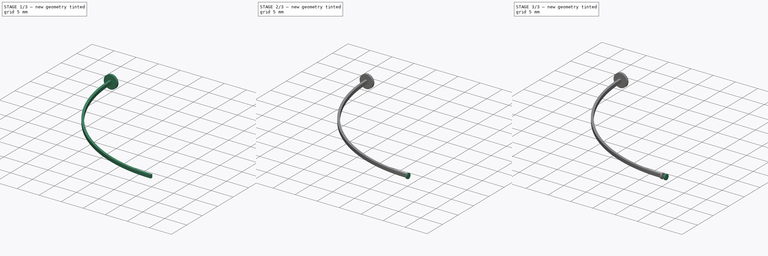
[diagram: build sequence overview — one tinted view per stage of 3, left to right]
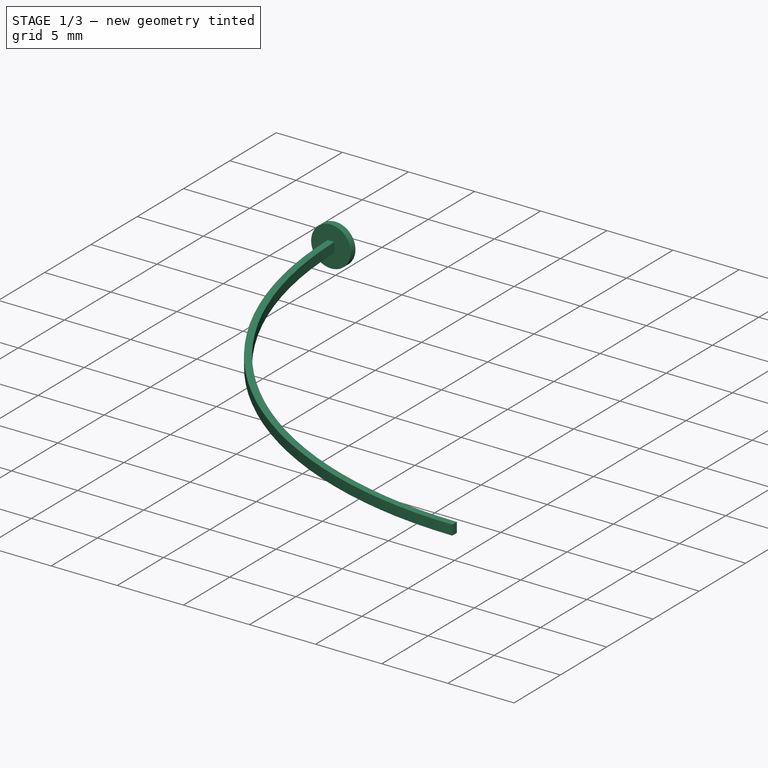
[diagram: stage 1 of 3 — iso view after this stage's code; geometry added in this stage tinted green]
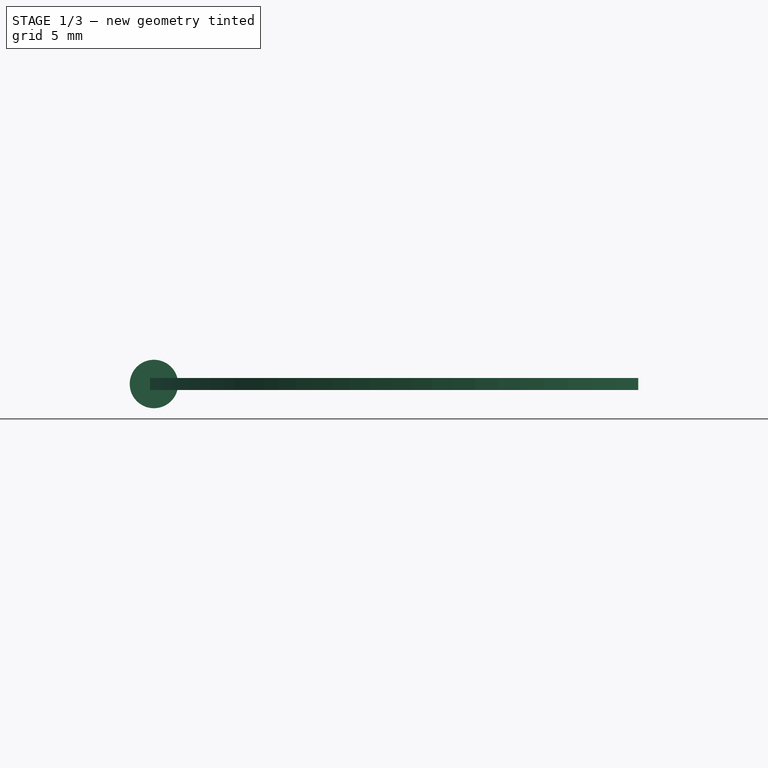
[diagram: stage 1 of 3 — front view after this stage's code; geometry added in this stage tinted green]
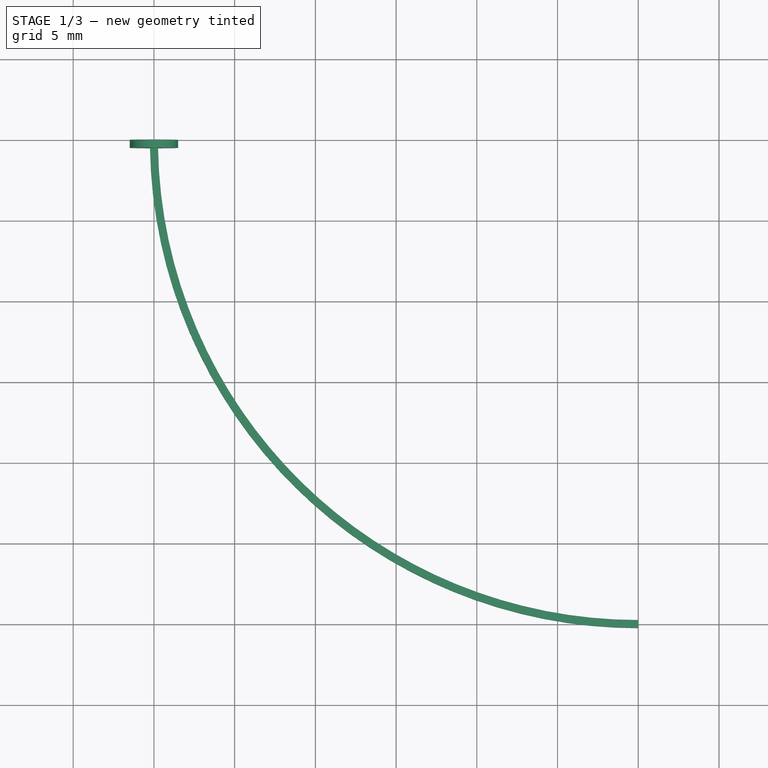
[diagram: stage 1 of 3 — top view after this stage's code; geometry added in this stage tinted green]
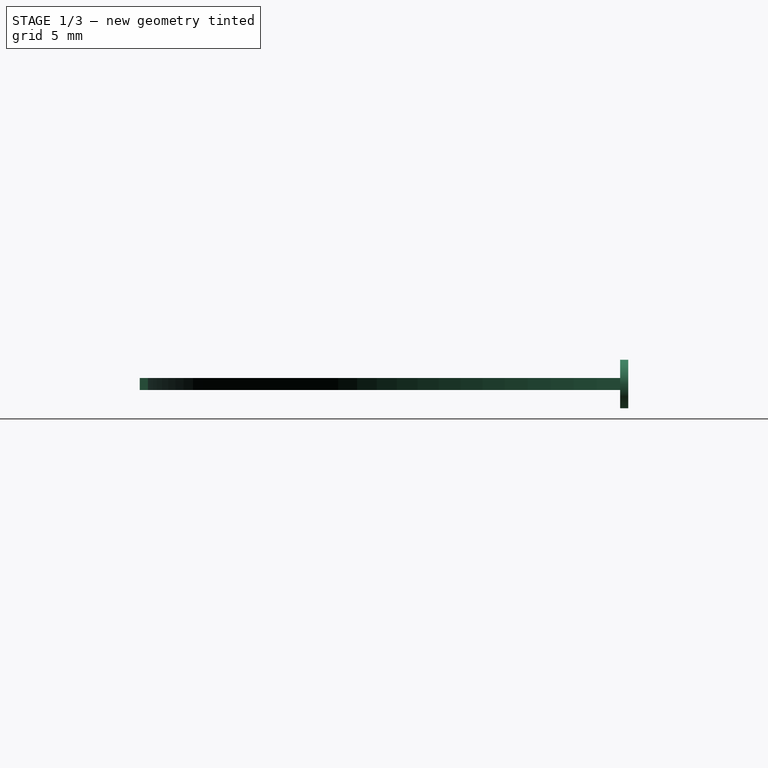
[diagram: stage 1 of 3 — right view after this stage's code; geometry added in this stage tinted green]
FCSTD DOCUMENT  (FreeCAD 0.20R29177 (Git))
Label: sla
License: All rights reserved
LicenseURL: http://en.wikipedia.org/wiki/All_rights_reserved
objects: Sketcher::SketchObject×5, PartDesign::Pad×5, PartDesign::Plane×3, Spreadsheet::Sheet×1, PartDesign::Body×1
note: 19 computed .brp shape members not serialized (recipe doc carries the construction recipe); baked Part::Feature solids carry a one-line shape summary decoded from their .brp

FEATURE [Spreadsheet::Sheet] Spreadsheet
  cells = A2=Design Parameters; A3=RefLength; B3(RefLength)==1mm; A4=ArmArcRadius; B4(ArmArcRadius)==30 * RefLength; A5=ArmWidth; B5(ArmWidth)==0.5 * RefLength; A6=ArmHeight; B6(ArmHeight)==0.75 * RefLength; A7=InnerPlaneDatumPlaneOffsetX; B7(InnerPlaneDatumPlaneOffsetX)==ArmArcRadius; A8=InnerPlaneDatumPlaneOffsetY; B8(InnerPlaneDatumPlaneOffsetY)==-ArmArcRadius; A9=ArmBaseDiameter; B9(ArmBaseDiameter)==3 * RefLength; A10=ArmBasePadLength; B10(ArmBasePadLength)==0.5 * RefLength; A11=JointPlateDiameter; B11(JointPlateDiameter)==1.2 * RefLength; A12=JointPlateThickness; B12(JointPlateThickness)==0.3 * RefLength; A13=JointPinDiameter; B13(JointPinDiameter)==0.3 * RefLength; A14=JointPinLength; B14(JointPinLength)==0.5 * RefLength; A15=PinDatumPlaneOffsetX; B15(PinDatumPlaneOffsetX)==ArmArcRadius + JointPlateThickness; A16=PinDatumPlaneOffsetY; B16(PinDatumPlaneOffsetY)==-ArmArcRadius; A17=OuterPlateDatumPlaneOffsetX; B17(OuterPlateDatumPlaneOffsetX)==ArmArcRadius + JointPlateThickness + JointPinLength; A18=OuterPlateDatumPlaneOffsetY; B18(OuterPlateDatumPlaneOffsetY)==-ArmArcRadius
FEATURE [Sketcher::SketchObject] Sketch  label="ArmSketch"
  FullyConstrained = true
  MapMode = 5
  Support = -> [XY_Plane]
  expr: Constraints[22] = Spreadsheet.ArmWidth
  expr: Constraints[9] = Spreadsheet.ArmArcRadius
  sketch-geometry (13):
    g0: LineSegment StartX=0 StartY=0 StartZ=0 EndX=0 EndY=-30 EndZ=0
    g1: LineSegment StartX=0 StartY=-30 StartZ=0 EndX=30 EndY=-30 EndZ=0
    g2: LineSegment StartX=0 StartY=0 StartZ=0 EndX=30 EndY=0 EndZ=0
    g3: LineSegment StartX=30 StartY=0 StartZ=0 EndX=30 EndY=-30 EndZ=0
    g4: ArcOfCircle CenterX=30 CenterY=0 CenterZ=0 NormalX=0 NormalY=0 NormalZ=1 AngleXU=0 Radius=30 StartAngle=3.14159 EndAngle=4.71239
    g5: LineSegment StartX=-0.25 StartY=0 StartZ=0 EndX=0 EndY=0 EndZ=0
    g6: LineSegment StartX=0 StartY=0 StartZ=0 EndX=0.25 EndY=0 EndZ=0
    g7: ArcOfCircle CenterX=30 CenterY=0 CenterZ=0 NormalX=0 NormalY=0 NormalZ=1 AngleXU=0 Radius=30.25 StartAngle=3.14159 EndAngle=4.71239
    g8: ArcOfCircle CenterX=30 CenterY=0 CenterZ=0 NormalX=0 NormalY=0 NormalZ=1 AngleXU=0 Radius=29.75 StartAngle=3.14159 EndAngle=4.71239
    g9: LineSegment StartX=30 StartY=-30 StartZ=0 EndX=30 EndY=-30.25 EndZ=0
    g10: LineSegment StartX=30 StartY=-29.75 StartZ=0 EndX=30 EndY=-30 EndZ=0
    g11: LineSegment StartX=30 StartY=-29.75 StartZ=0 EndX=30 EndY=-30 EndZ=0
    g12: LineSegment StartX=30 StartY=-30 StartZ=0 EndX=30 EndY=-30.25 EndZ=0
  constraints (33):
    c: Vertical(g0)
    c: Coincident(g0,g1)
    c: Horizontal(g1)
    c: Horizontal(g2)
    c: Coincident(g2,g3)
    c: Vertical(g3)
    c: Coincident(g3,g1)
    c: Coincident(g4,g2)
    c: Coincident(g4,g1)
    c: Radius(g4) = 30
    c: Horizontal(g5)
    c: Coincident(g5,g6)
    c: Horizontal(g6)
    c: Equal(g5,g6)
    c: Coincident(g7,g2)
    c: Coincident(g8,g7)
    c: Vertical(g9)
    c: Coincident(g9,g1)
    c: Coincident(g9,g7)
    c: Vertical(g10)
    c: Coincident(g1,g10)
    c: Coincident(g10,g8)
    c: DistanceX(g5,g6) = 0.5
    c: Coincident(g2,g0)
    c: Coincident(g4,g0)
    c: Coincident(g0,g5)
    c: Coincident(g5,g-1)
    c: Coincident(g7,g5)
    c: Coincident(g8,g6)
    c: Coincident(g11,g8)
    c: Coincident(g11,g1)
    c: Coincident(g12,g11)
    c: Coincident(g12,g7)
FEATURE [PartDesign::Pad] Pad  label="ArmPad"
  Direction = (0,0,1)
  Length = 0.75
  Length2 = 10
  Midplane = true
  Profile = -> Sketch
  ReferenceAxis = -> Sketch [N_Axis]
  Type = 0
  expr: Length = Spreadsheet.ArmHeight
FEATURE [PartDesign::Plane] DatumPlane  label="InnerPlateDatumPlane"
  AttachmentOffset = pos=(-30,0,30) rot=(0,0,1;0rad)
  Length = 66.1451
  MapMode = 5
  Placement = pos=(30,-30,1.33e-14) rot=(0.57735,0.57735,0.57735;2.0944rad)
  ResizeMode = 0
  Support = -> [YZ_Plane]
  Width = 60.5451
  expr: .AttachmentOffset.Base.x = Spreadsheet.InnerPlaneDatumPlaneOffsetY
  expr: .AttachmentOffset.Base.z = Spreadsheet.InnerPlaneDatumPlaneOffsetX
FEATURE [Sketcher::SketchObject] Sketch002  label="ArmBaseSketch"
  FullyConstrained = true
  MapMode = 5
  Placement = pos=(0,0,0) rot=(1,0,0;1.5708rad)
  Support = -> [XZ_Plane]
  expr: Constraints[1] = Spreadsheet.ArmBaseDiameter
  sketch-geometry (1):
    g0: Circle CenterX=0 CenterY=0 CenterZ=0 NormalX=0 NormalY=0 NormalZ=1 AngleXU=0 Radius=1.5
  constraints (2):
    c: Coincident(g0,g-1)
    c: Diameter(g0) = 3
FEATURE [PartDesign::Pad] Pad001  label="ArmBasePad"
  BaseFeature = -> Pad
  Direction = (0,-1,-2e-16)
  Length = 0.5
  Length2 = 10
  Profile = -> Sketch002
  ReferenceAxis = -> Sketch002 [N_Axis]
  Type = 0
  expr: Length = Spreadsheet.ArmBasePadLength
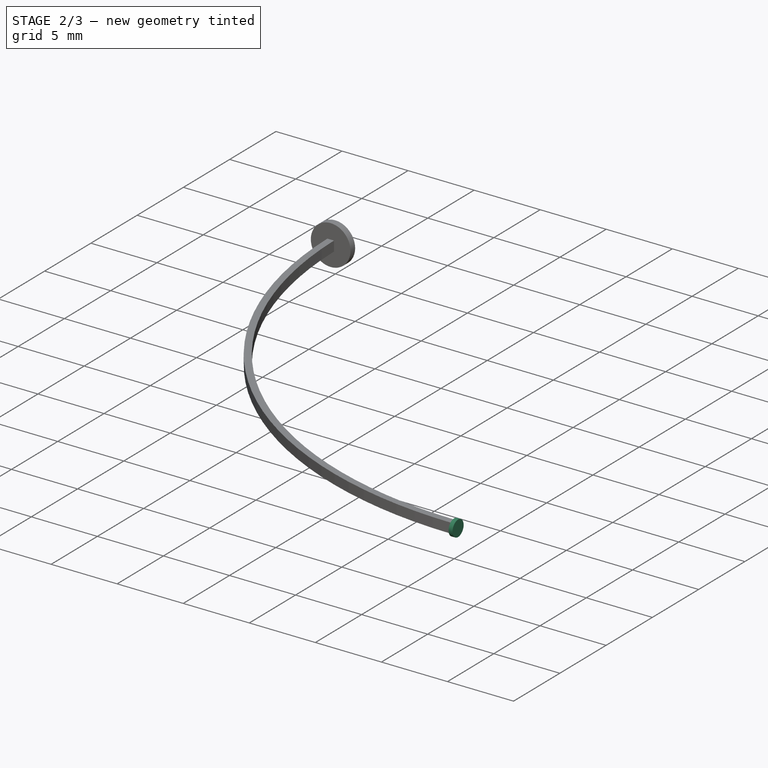
[diagram: stage 2 of 3 — iso view after this stage's code; geometry added in this stage tinted green]
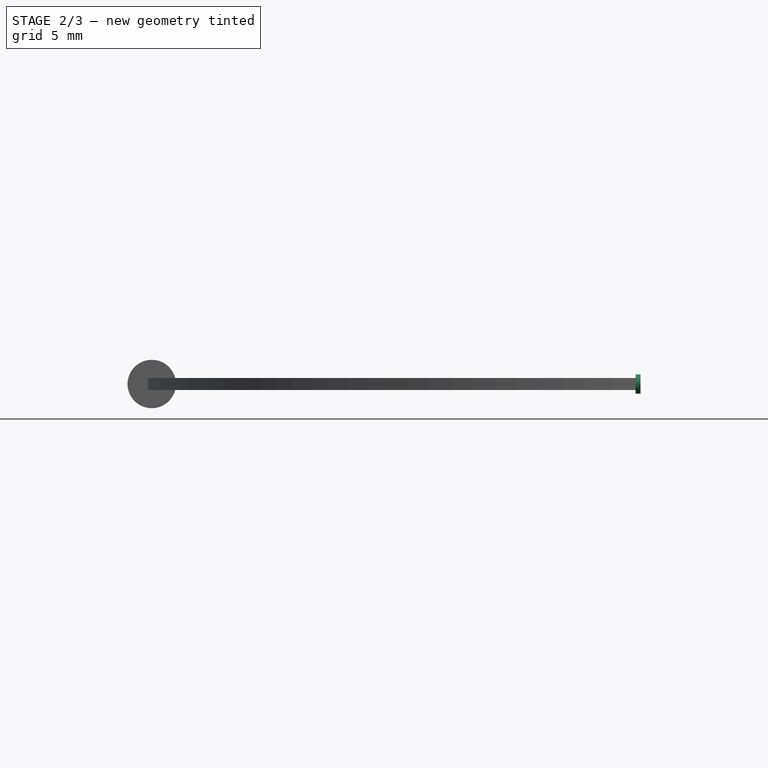
[diagram: stage 2 of 3 — front view after this stage's code; geometry added in this stage tinted green]
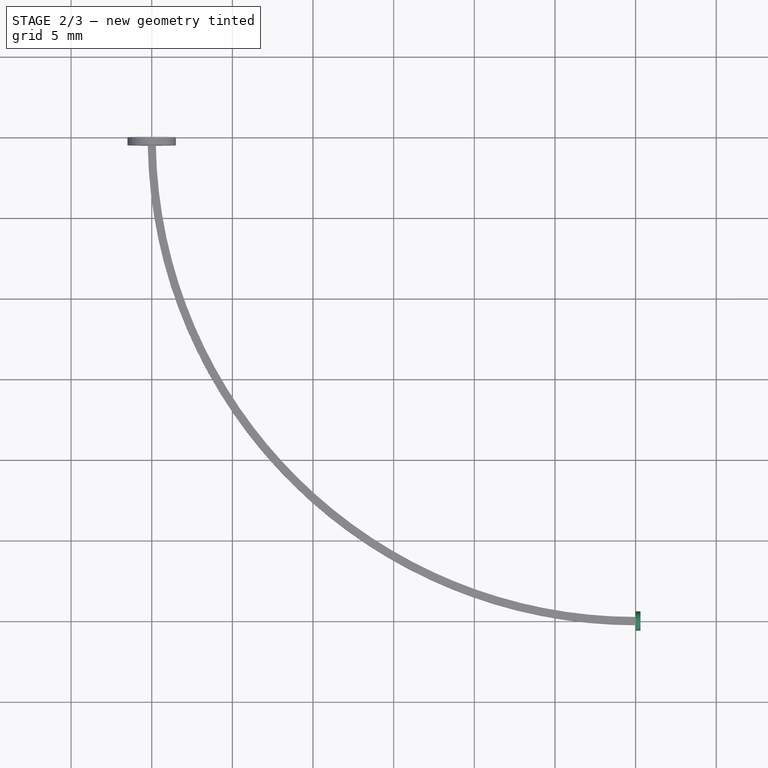
[diagram: stage 2 of 3 — top view after this stage's code; geometry added in this stage tinted green]
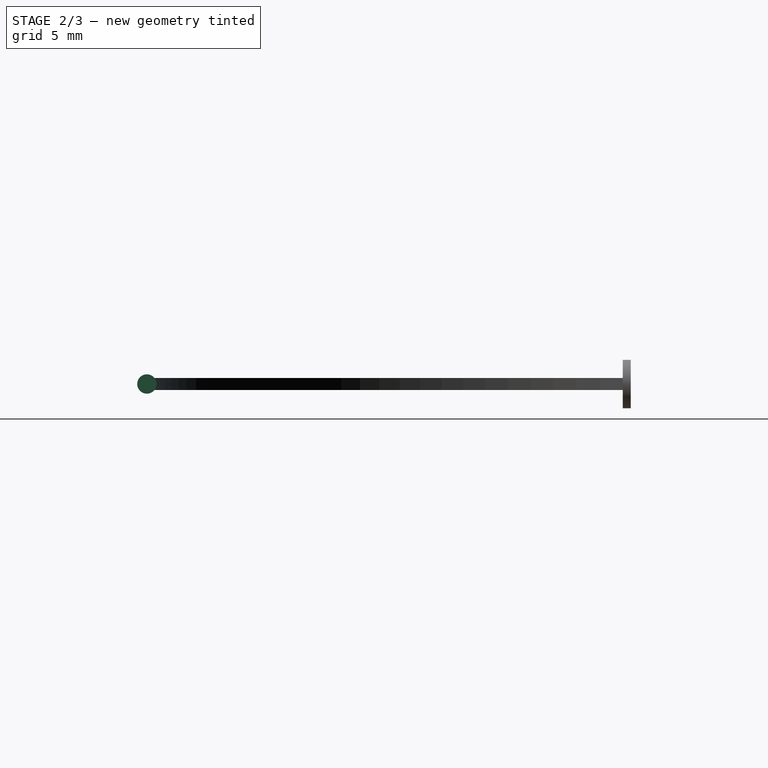
[diagram: stage 2 of 3 — right view after this stage's code; geometry added in this stage tinted green]
FEATURE [Sketcher::SketchObject] Sketch003  label="InnerJointPlateSketch"
  FullyConstrained = true
  MapMode = 5
  Placement = pos=(30,-30,1.33e-14) rot=(0.57735,0.57735,0.57735;2.0944rad)
  Support = -> [DatumPlane]
  expr: Constraints[1] = Spreadsheet.JointPlateDiameter
  sketch-geometry (1):
    g0: Circle CenterX=0 CenterY=0 CenterZ=0 NormalX=0 NormalY=0 NormalZ=1 AngleXU=0 Radius=0.6
  constraints (2):
    c: Coincident(g0,g-1)
    c: Diameter(g0) = 1.2
FEATURE [PartDesign::Pad] Pad002  label="InnerJointPlatePad"
  BaseFeature = -> Pad001
  Direction = (1,-1e-16,1e-16)
  Length = 0.3
  Length2 = 10
  Profile = -> Sketch003
  ReferenceAxis = -> Sketch003 [N_Axis]
  Type = 0
  expr: Length = Spreadsheet.JointPlateThickness
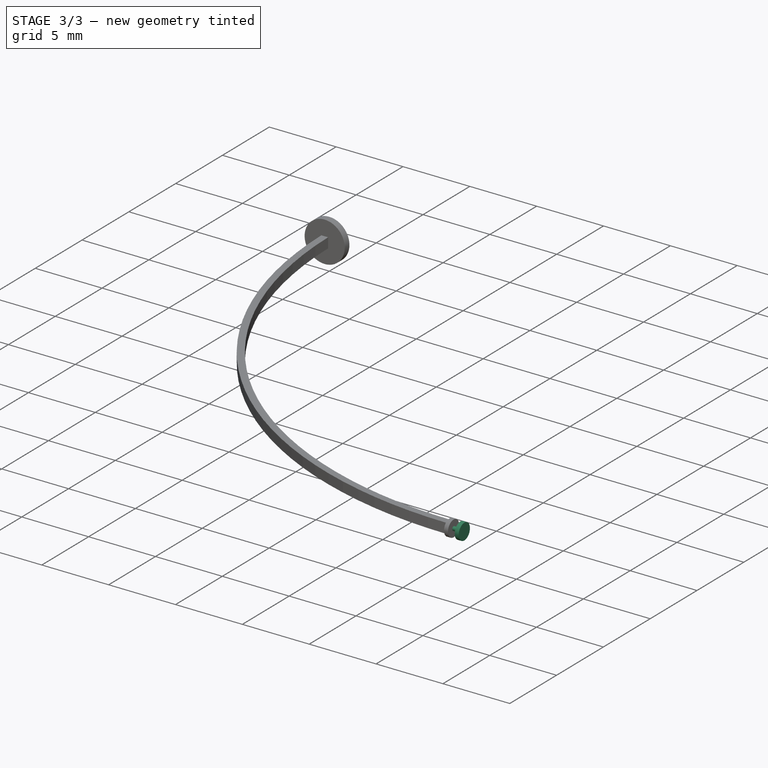
[diagram: stage 3 of 3 — iso view after this stage's code; geometry added in this stage tinted green]
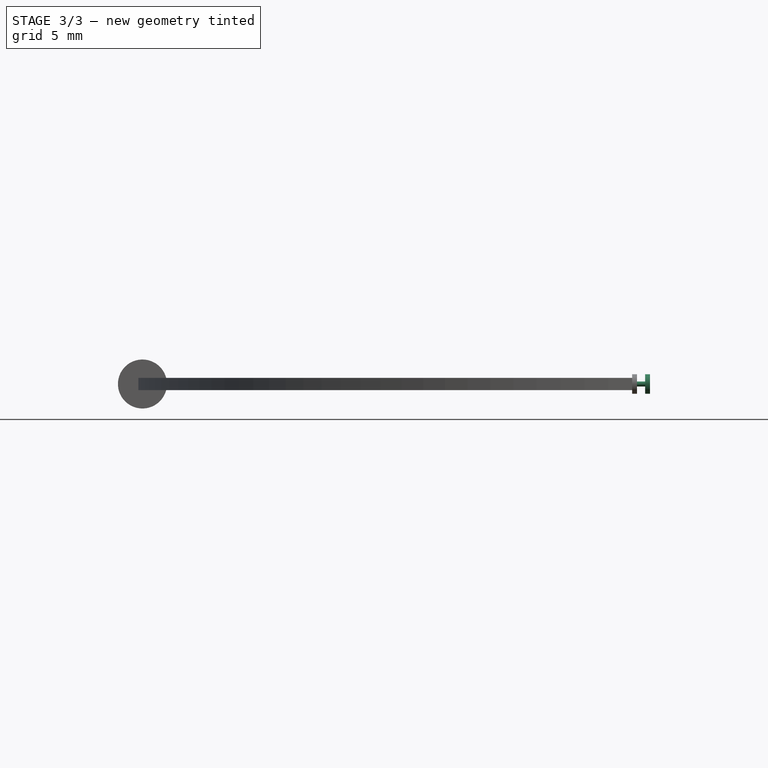
[diagram: stage 3 of 3 — front view after this stage's code; geometry added in this stage tinted green]
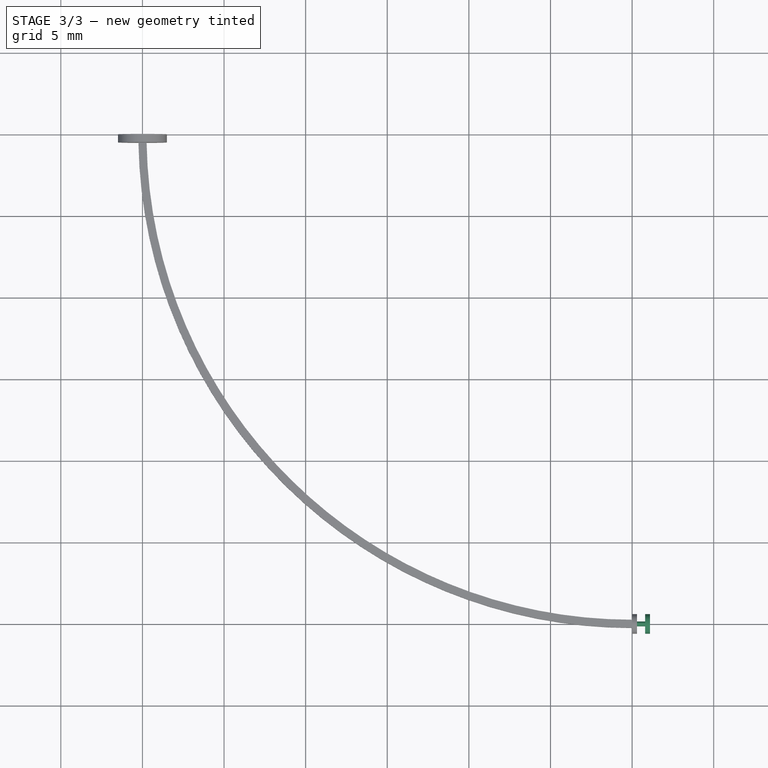
[diagram: stage 3 of 3 — top view after this stage's code; geometry added in this stage tinted green]
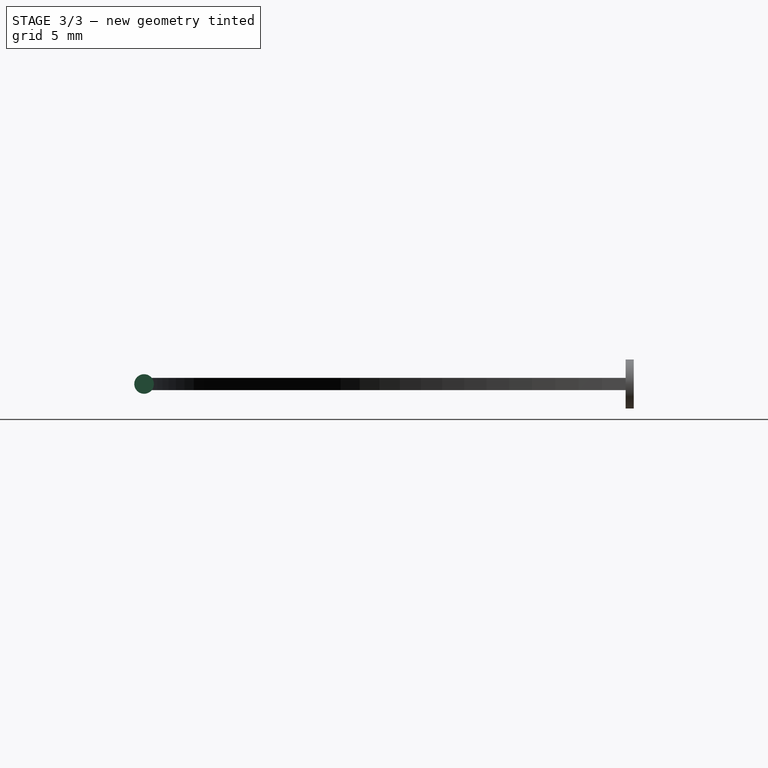
[diagram: stage 3 of 3 — right view after this stage's code; geometry added in this stage tinted green]
FEATURE [PartDesign::Plane] DatumPlane001  label="PinDatumPlane"
  AttachmentOffset = pos=(-30,0,30.3) rot=(0,0,1;0rad)
  Length = 66.1451
  MapMode = 5
  Placement = pos=(30.3,-30,1.34e-14) rot=(0.57735,0.57735,0.57735;2.0944rad)
  ResizeMode = 0
  Support = -> [YZ_Plane]
  Width = 60.5451
  expr: .AttachmentOffset.Base.x = Spreadsheet.PinDatumPlaneOffsetY
  expr: .AttachmentOffset.Base.z = Spreadsheet.PinDatumPlaneOffsetX
FEATURE [Sketcher::SketchObject] Sketch004  label="PinSketch"
  FullyConstrained = true
  MapMode = 5
  Placement = pos=(30.3,-30,1.34e-14) rot=(0.57735,0.57735,0.57735;2.0944rad)
  Support = -> [DatumPlane001]
  expr: Constraints[1] = Spreadsheet.JointPinDiameter
  sketch-geometry (1):
    g0: Circle CenterX=0 CenterY=0 CenterZ=0 NormalX=0 NormalY=0 NormalZ=1 AngleXU=0 Radius=0.15
  constraints (2):
    c: Coincident(g0,g-1)
    c: Diameter(g0) = 0.3
FEATURE [PartDesign::Pad] Pad003  label="PinPad"
  BaseFeature = -> Pad002
  Direction = (1,-1e-16,1e-16)
  Length = 0.5
  Length2 = 10
  Profile = -> Sketch004
  ReferenceAxis = -> Sketch004 [N_Axis]
  Type = 0
  expr: Length = Spreadsheet.JointPinLength
FEATURE [PartDesign::Plane] DatumPlane002  label="OuterPlateDatumPlane"
  AttachmentOffset = pos=(-30,0,30.8) rot=(0,0,1;0rad)
  Length = 66.1451
  MapMode = 5
  Placement = pos=(30.8,-30,1.35e-14) rot=(0.57735,0.57735,0.57735;2.0944rad)
  ResizeMode = 0
  Support = -> [YZ_Plane]
  Width = 60.5451
  expr: .AttachmentOffset.Base.x = Spreadsheet.OuterPlateDatumPlaneOffsetY
  expr: .AttachmentOffset.Base.z = Spreadsheet.OuterPlateDatumPlaneOffsetX
FEATURE [Sketcher::SketchObject] Sketch005  label="OuterJointPlateSketch"
  FullyConstrained = true
  MapMode = 5
  Placement = pos=(30.8,-30,1.35e-14) rot=(0.57735,0.57735,0.57735;2.0944rad)
  Support = -> [DatumPlane002]
  expr: Constraints[1] = Spreadsheet.JointPlateDiameter
  sketch-geometry (1):
    g0: Circle CenterX=0 CenterY=0 CenterZ=0 NormalX=0 NormalY=0 NormalZ=1 AngleXU=0 Radius=0.6
  constraints (2):
    c: Coincident(g0,g-1)
    c: Diameter(g0) = 1.2
FEATURE [PartDesign::Pad] Pad004  label="OuterJontPlatePad"
  BaseFeature = -> Pad003
  Direction = (1,-1e-16,1e-16)
  Length = 0.3
  Length2 = 10
  Profile = -> Sketch005
  ReferenceAxis = -> Sketch005 [N_Axis]
  Type = 0
  expr: Length = Spreadsheet.JointPlateThickness
FEATURE [PartDesign::Body] Body
  Group = -> [Sketch,Pad,DatumPlane,Sketch002,Pad001,Sketch003,Pad002,DatumPlane001,Sketch004,Pad003,DatumPlane002,Sketch005,Pad004]
  Origin = -> Origin
  Tip = -> Pad004
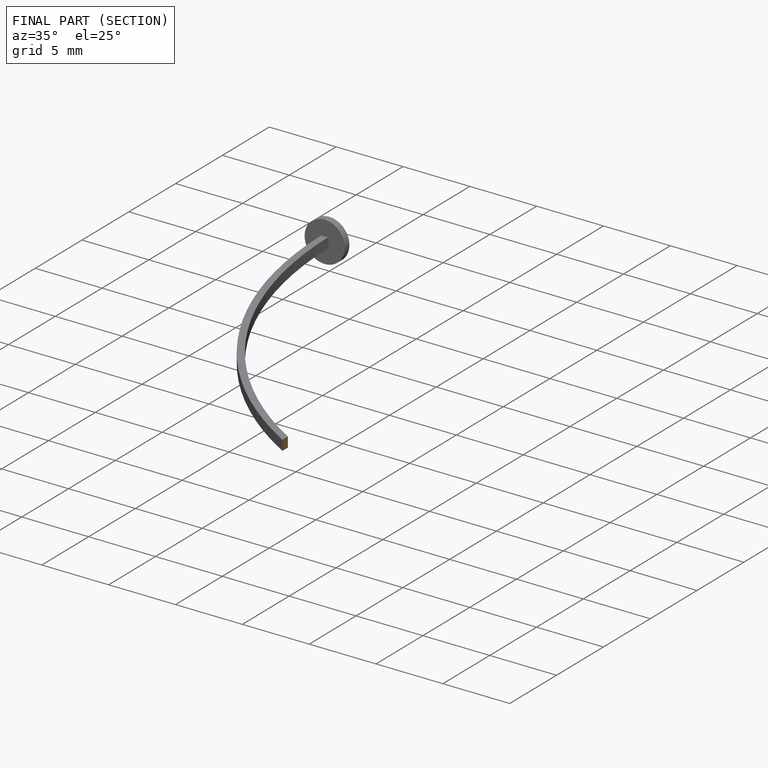
[diagram: finished part — half-section view (interior)]
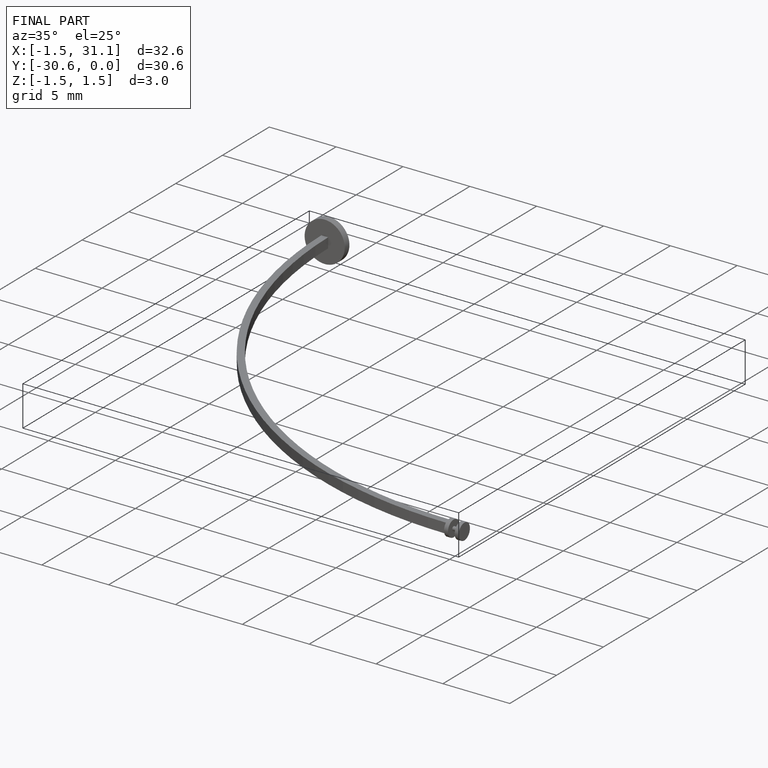
[diagram: finished part — iso view with bounding-box wireframe]
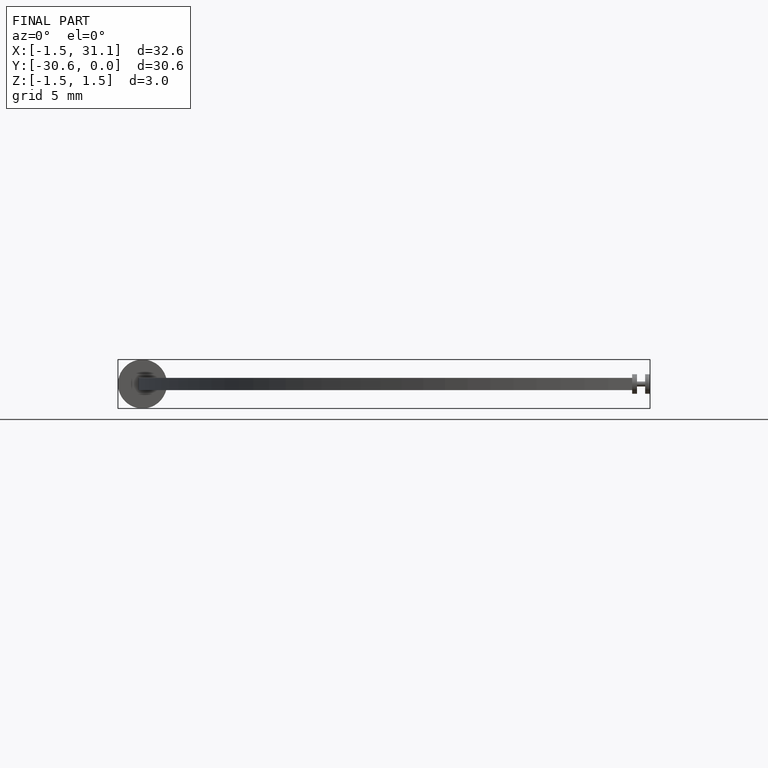
[diagram: finished part — front view with bounding-box wireframe]
